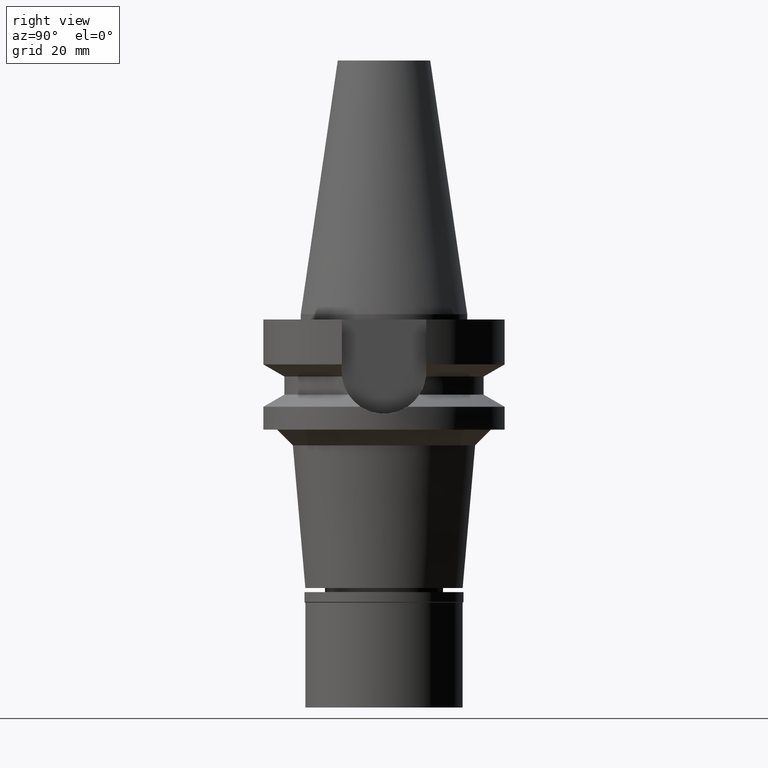
[diagram: clean part render]
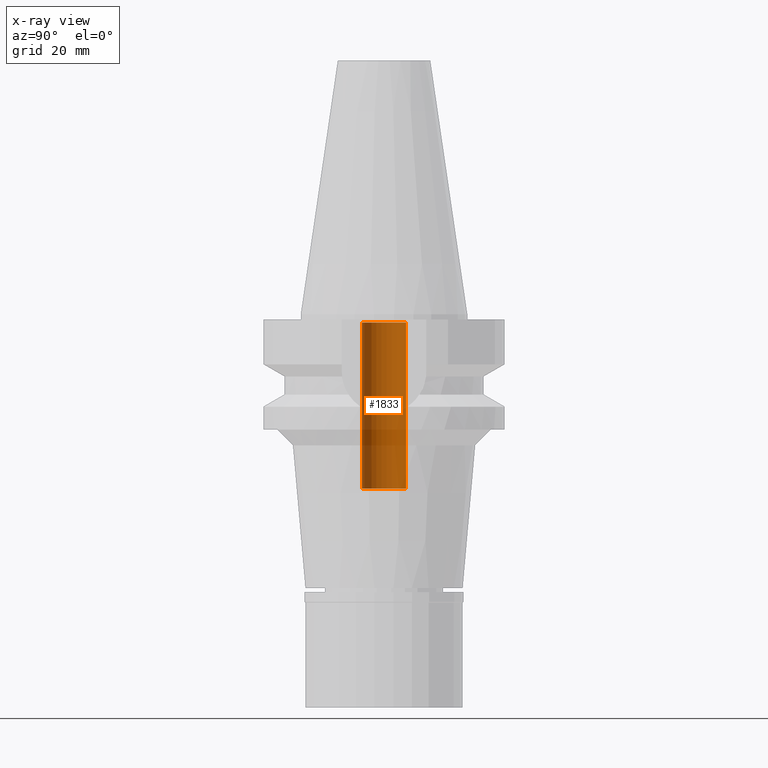
[diagram: x-ray — body ghosted, one internal face saturated and labeled with its STEP entity id]
A machine part, right view, then the same camera in x-ray: the body is ghosted and one INTERNAL B-rep face — a face not visible from any outside direction — is saturated and labeled: STEP entity #1833.
In plain terms, the highlighted cylindrical surface (edge-blend (fillet) strip) has radius 4.2 mm, axis along (0, 0, -1).
Its self-contained STEP definition (entity closure, byte-faithful):
#91 = LINE ( 'NONE', #1347, #2391 ) ;
#138 = LINE ( 'NONE', #418, #2496 ) ;
#402 = DIRECTION ( 'NONE',  ( 0.0000000000000000000, 0.0000000000000000000, -1.000000000000000000 ) ) ;
#418 = CARTESIAN_POINT ( 'NONE',  ( 0.0000000000000000000, 4.200000000000000178, -33.30000000000000426 ) ) ;
#764 = CARTESIAN_POINT ( 'NONE',  ( 0.0000000000000000000, 0.0000000000000000000, -1.600000000000000089 ) ) ;
#765 = CIRCLE ( 'NONE', #1056, 4.200000000000000178 ) ;
#806 = CARTESIAN_POINT ( 'NONE',  ( 0.0000000000000000000, 4.200000000000000178, -33.30000000000000426 ) ) ;
#825 = CARTESIAN_POINT ( 'NONE',  ( 0.0000000000000000000, 0.0000000000000000000, -33.30000000000000426 ) ) ;
#888 = DIRECTION ( 'NONE',  ( 0.0000000000000000000, 0.0000000000000000000, 1.000000000000000000 ) ) ;
#1039 = CARTESIAN_POINT ( 'NONE',  ( 0.0000000000000000000, -4.200000000000000178, -1.600000000000000089 ) ) ;
#1049 = DIRECTION ( 'NONE',  ( 0.0000000000000000000, 0.0000000000000000000, 1.000000000000000000 ) ) ;
#1056 = AXIS2_PLACEMENT_3D ( 'NONE', #825, #1794, #1319 ) ;
#1085 = DIRECTION ( 'NONE',  ( 0.0000000000000000000, 0.0000000000000000000, 1.000000000000000000 ) ) ;
#1094 = CIRCLE ( 'NONE', #2732, 4.200000000000000178 ) ;
#1132 = VERTEX_POINT ( 'NONE', #1879 ) ;
#1175 = ORIENTED_EDGE ( 'NONE', *, *, #1499, .T. ) ;
#1191 = VERTEX_POINT ( 'NONE', #2494 ) ;
#1229 = DIRECTION ( 'NONE',  ( 0.0000000000000000000, 1.000000000000000000, 0.0000000000000000000 ) ) ;
#1239 = AXIS2_PLACEMENT_3D ( 'NONE', #3064, #402, #2071 ) ;
#1319 = DIRECTION ( 'NONE',  ( 0.0000000000000000000, -1.000000000000000000, 0.0000000000000000000 ) ) ;
#1347 = CARTESIAN_POINT ( 'NONE',  ( 0.0000000000000000000, -4.200000000000000178, -33.30000000000000426 ) ) ;
#1389 = ORIENTED_EDGE ( 'NONE', *, *, #2315, .T. ) ;
#1408 = EDGE_LOOP ( 'NONE', ( #1175, #2077, #2709, #1389 ) ) ;
#1499 = EDGE_CURVE ( 'NONE', #1132, #1922, #1094, .T. ) ;
#1735 = VERTEX_POINT ( 'NONE', #806 ) ;
#1794 = DIRECTION ( 'NONE',  ( 0.0000000000000000000, 0.0000000000000000000, -1.000000000000000000 ) ) ;
#1802 = EDGE_CURVE ( 'NONE', #1191, #1922, #91, .T. ) ;
#1833 = ADVANCED_FACE ( 'NONE', ( #1866 ), #2810, .F. ) ;
#1866 = FACE_OUTER_BOUND ( 'NONE', #1408, .T. ) ;
#1879 = CARTESIAN_POINT ( 'NONE',  ( 0.0000000000000000000, 4.200000000000000178, -1.600000000000000089 ) ) ;
#1922 = VERTEX_POINT ( 'NONE', #1039 ) ;
#2071 = DIRECTION ( 'NONE',  ( 0.0000000000000000000, -1.000000000000000000, 0.0000000000000000000 ) ) ;
#2077 = ORIENTED_EDGE ( 'NONE', *, *, #1802, .F. ) ;
#2315 = EDGE_CURVE ( 'NONE', #1735, #1132, #138, .T. ) ;
#2391 = VECTOR ( 'NONE', #888, 1000.000000000000000 ) ;
#2494 = CARTESIAN_POINT ( 'NONE',  ( 0.0000000000000000000, -4.200000000000000178, -33.30000000000000426 ) ) ;
#2496 = VECTOR ( 'NONE', #1085, 1000.000000000000000 ) ;
#2709 = ORIENTED_EDGE ( 'NONE', *, *, #2773, .T. ) ;
#2732 = AXIS2_PLACEMENT_3D ( 'NONE', #764, #1049, #1229 ) ;
#2773 = EDGE_CURVE ( 'NONE', #1191, #1735, #765, .T. ) ;
#2810 = CYLINDRICAL_SURFACE ( 'NONE', #1239, 4.200000000000000178 ) ;
#3064 = CARTESIAN_POINT ( 'NONE',  ( 0.0000000000000000000, 0.0000000000000000000, 0.0000000000000000000 ) ) ;